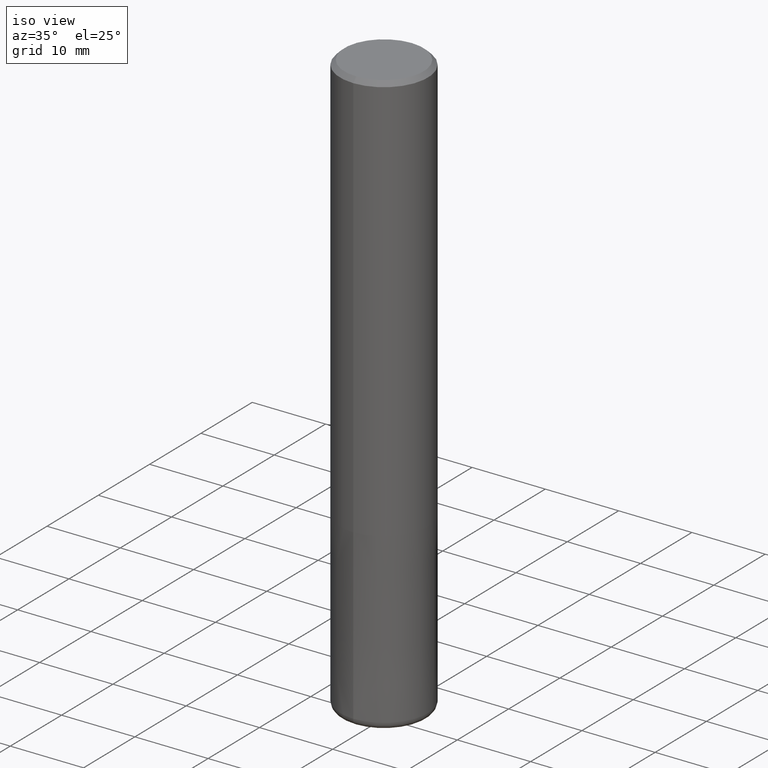
[diagram: clean part render]
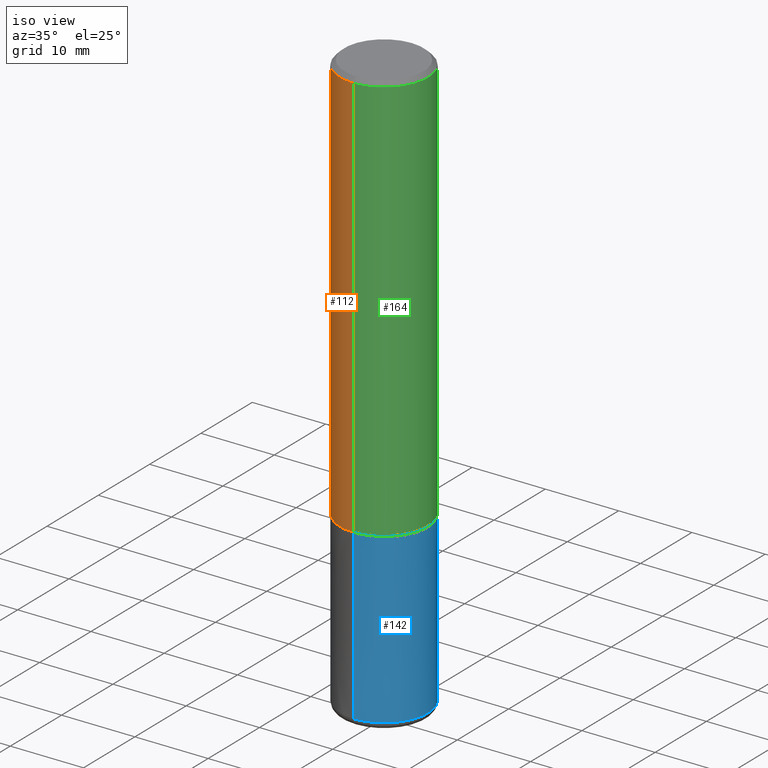
[diagram: same view with three faces highlighted in distinct colors, each labeled with its STEP entity id]
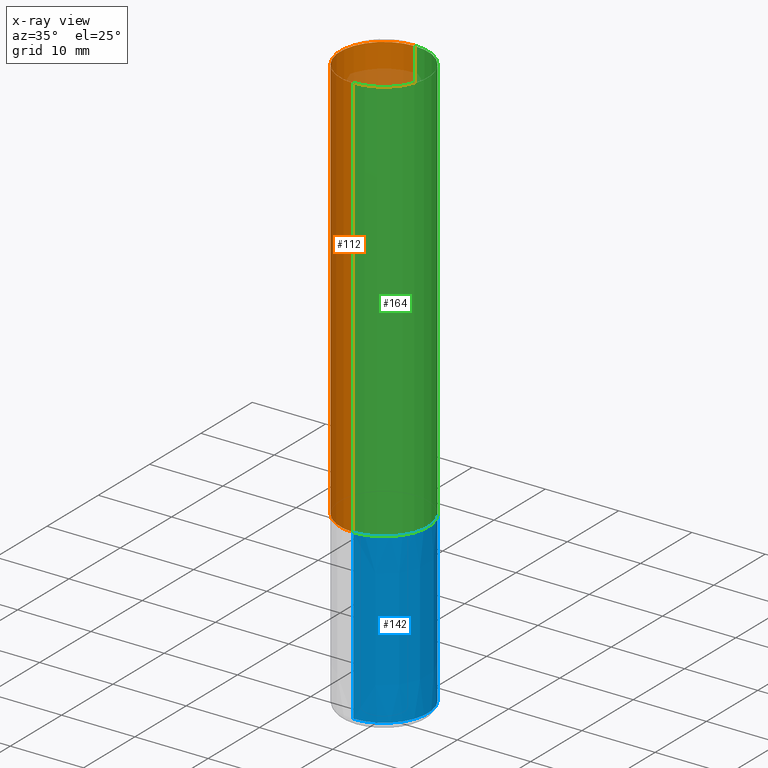
[diagram: x-ray of the same camera — body ghosted, the three highlighted faces saturated]
A machine part, iso view with three faces highlighted in distinct colors.
The next image is the same camera in x-ray (body ghosted, the three faces saturated) — at least one of them is partly hidden behind the body in this view.
Their STEP definitions:

[orange] entity #112 — the highlighted cylindrical surface (partial cylindrical patch) has radius 6 mm, axis along (-0, -0, 1).
#104=EDGE_CURVE('',#144,#168,#265,.T.);
#112=ADVANCED_FACE('',(#275),#276,.T.);
#124=EDGE_CURVE('',#168,#244,#289,.T.);
#144=VERTEX_POINT('',#312);
#166=VERTEX_POINT('',#336);
#168=VERTEX_POINT('',#338);
#192=EDGE_CURVE('',#244,#166,#363,.T.);
#204=EDGE_CURVE('',#144,#166,#379,.T.);
#244=VERTEX_POINT('',#425);
#265=LINE('',#439,#440);
#275=FACE_OUTER_BOUND('',#451,.T.);
#276=CYLINDRICAL_SURFACE('',#452,6.0);
#289=CIRCLE('',#467,6.0);
#312=CARTESIAN_POINT('',(7.34763812293426E-016,-6.0,-56.0));
#336=CARTESIAN_POINT('',(0.0,6.0,-56.0));
#338=CARTESIAN_POINT('',(7.34763812293426E-016,-6.0,-0.600000000000001));
#363=LINE('',#562,#563);
#379=CIRCLE('',#582,6.0);
#425=CARTESIAN_POINT('',(0.0,6.0,-0.600000000000001));
#439=CARTESIAN_POINT('',(7.34763812293426E-016,-6.0,-28.3));
#440=VECTOR('',#640,1.0);
#451=EDGE_LOOP('',(#661,#662,#663,#664));
#452=AXIS2_PLACEMENT_3D('',#665,#666,#667);
#467=AXIS2_PLACEMENT_3D('',#679,#680,#681);
#562=CARTESIAN_POINT('',(-7.34763812293426E-016,6.0,-28.3));
#563=VECTOR('',#770,1.0);
#582=AXIS2_PLACEMENT_3D('',#796,#797,#798);
#640=DIRECTION('',(-0.0,-0.0,1.0));
#661=ORIENTED_EDGE('',*,*,#192,.T.);
#662=ORIENTED_EDGE('',*,*,#204,.F.);
#663=ORIENTED_EDGE('',*,*,#104,.T.);
#664=ORIENTED_EDGE('',*,*,#124,.T.);
#665=CARTESIAN_POINT('',(0.0,0.0,-28.3));
#666=DIRECTION('',(-0.0,-0.0,1.0));
#667=DIRECTION('',(0.0,1.0,0.0));
#679=CARTESIAN_POINT('',(0.0,0.0,-0.600000000000001));
#680=DIRECTION('',(0.0,0.0,-1.0));
#681=DIRECTION('',(0.0,1.0,0.0));
#770=DIRECTION('',(0.0,0.0,-1.0));
#796=CARTESIAN_POINT('',(0.0,0.0,-56.0));
#797=DIRECTION('',(0.0,0.0,-1.0));
#798=DIRECTION('',(0.0,1.0,0.0));

[blue] entity #142 — the highlighted conical surface has half-angle 0 deg.
#110=EDGE_CURVE('',#222,#130,#273,.T.);
#130=VERTEX_POINT('',#295);
#142=ADVANCED_FACE('',(#309),#310,.T.);
#146=VERTEX_POINT('',#314);
#152=EDGE_CURVE('',#240,#146,#321,.T.);
#222=VERTEX_POINT('',#400);
#226=EDGE_CURVE('',#222,#240,#404,.T.);
#238=EDGE_CURVE('',#146,#130,#417,.T.);
#240=VERTEX_POINT('',#419);
#273=CIRCLE('',#449,5.9999);
#295=CARTESIAN_POINT('',(7.34751566229888E-016,-5.9999,-56.0));
#309=FACE_OUTER_BOUND('',#492,.T.);
#310=CONICAL_SURFACE('',#493,5.99995,4.34782608691899E-006);
#314=CARTESIAN_POINT('',(7.34763812293426E-016,-6.0,-79.0));
#321=CIRCLE('',#506,6.0);
#400=CARTESIAN_POINT('',(0.0,5.9999,-56.0));
#404=LINE('',#613,#614);
#417=LINE('',#629,#630);
#419=CARTESIAN_POINT('',(0.0,6.0,-79.0));
#449=AXIS2_PLACEMENT_3D('',#657,#658,#659);
#492=EDGE_LOOP('',(#704,#705,#706,#707));
#493=AXIS2_PLACEMENT_3D('',#708,#709,#710);
#506=AXIS2_PLACEMENT_3D('',#720,#721,#722);
#613=CARTESIAN_POINT('',(-7.34757689261657E-016,5.99995,-67.5));
#614=VECTOR('',#830,1.0);
#629=CARTESIAN_POINT('',(7.34757689261657E-016,-5.99995,-67.5));
#630=VECTOR('',#841,1.0);
#657=CARTESIAN_POINT('',(0.0,0.0,-56.0));
#658=DIRECTION('',(0.0,0.0,-1.0));
#659=DIRECTION('',(0.0,1.0,0.0));
#704=ORIENTED_EDGE('',*,*,#226,.F.);
#705=ORIENTED_EDGE('',*,*,#110,.T.);
#706=ORIENTED_EDGE('',*,*,#238,.F.);
#707=ORIENTED_EDGE('',*,*,#152,.F.);
#708=CARTESIAN_POINT('',(0.0,0.0,-67.5));
#709=DIRECTION('',(0.0,-0.0,-1.0));
#710=DIRECTION('',(0.0,1.0,0.0));
#720=CARTESIAN_POINT('',(0.0,0.0,-79.0));
#721=DIRECTION('',(0.0,0.0,-1.0));
#722=DIRECTION('',(0.0,1.0,0.0));
#830=DIRECTION('',(-5.32437545133891E-022,4.34782608690529E-006,-0.999999999990548));
#841=DIRECTION('',(-5.32437545133891E-022,4.34782608690529E-006,0.999999999990548));

[green] entity #164 — the highlighted cylindrical surface (partial cylindrical patch) has radius 6 mm, axis along (-0, -0, 1).
#104=EDGE_CURVE('',#144,#168,#265,.T.);
#144=VERTEX_POINT('',#312);
#164=ADVANCED_FACE('',(#333),#334,.T.);
#166=VERTEX_POINT('',#336);
#168=VERTEX_POINT('',#338);
#192=EDGE_CURVE('',#244,#166,#363,.T.);
#208=EDGE_CURVE('',#244,#168,#384,.T.);
#224=EDGE_CURVE('',#166,#144,#402,.T.);
#244=VERTEX_POINT('',#425);
#265=LINE('',#439,#440);
#312=CARTESIAN_POINT('',(7.34763812293426E-016,-6.0,-56.0));
#333=FACE_OUTER_BOUND('',#524,.T.);
#334=CYLINDRICAL_SURFACE('',#525,6.0);
#336=CARTESIAN_POINT('',(0.0,6.0,-56.0));
#338=CARTESIAN_POINT('',(7.34763812293426E-016,-6.0,-0.600000000000001));
#363=LINE('',#562,#563);
#384=CIRCLE('',#588,6.0);
#402=CIRCLE('',#610,6.0);
#425=CARTESIAN_POINT('',(0.0,6.0,-0.600000000000001));
#439=CARTESIAN_POINT('',(7.34763812293426E-016,-6.0,-28.3));
#440=VECTOR('',#640,1.0);
#524=EDGE_LOOP('',(#737,#738,#739,#740));
#525=AXIS2_PLACEMENT_3D('',#741,#742,#743);
#562=CARTESIAN_POINT('',(-7.34763812293426E-016,6.0,-28.3));
#563=VECTOR('',#770,1.0);
#588=AXIS2_PLACEMENT_3D('',#807,#808,#809);
#610=AXIS2_PLACEMENT_3D('',#827,#828,#829);
#640=DIRECTION('',(-0.0,-0.0,1.0));
#737=ORIENTED_EDGE('',*,*,#192,.F.);
#738=ORIENTED_EDGE('',*,*,#208,.T.);
#739=ORIENTED_EDGE('',*,*,#104,.F.);
#740=ORIENTED_EDGE('',*,*,#224,.F.);
#741=CARTESIAN_POINT('',(0.0,0.0,-28.3));
#742=DIRECTION('',(-0.0,-0.0,1.0));
#743=DIRECTION('',(0.0,1.0,0.0));
#770=DIRECTION('',(0.0,0.0,-1.0));
#807=CARTESIAN_POINT('',(0.0,0.0,-0.600000000000001));
#808=DIRECTION('',(0.0,0.0,-1.0));
#809=DIRECTION('',(0.0,1.0,0.0));
#827=CARTESIAN_POINT('',(0.0,0.0,-56.0));
#828=DIRECTION('',(0.0,0.0,-1.0));
#829=DIRECTION('',(0.0,1.0,0.0));